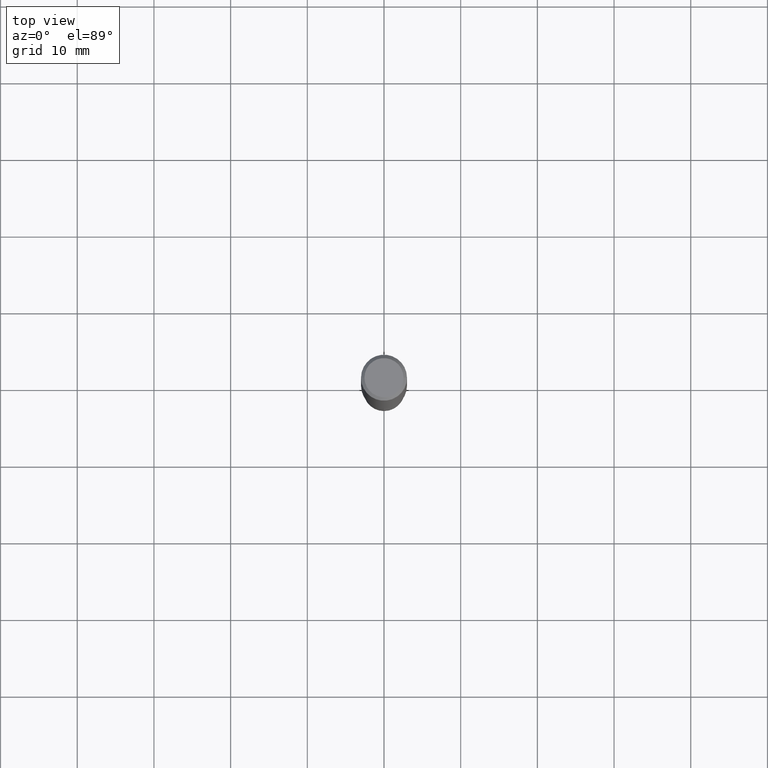
[diagram: clean part render]
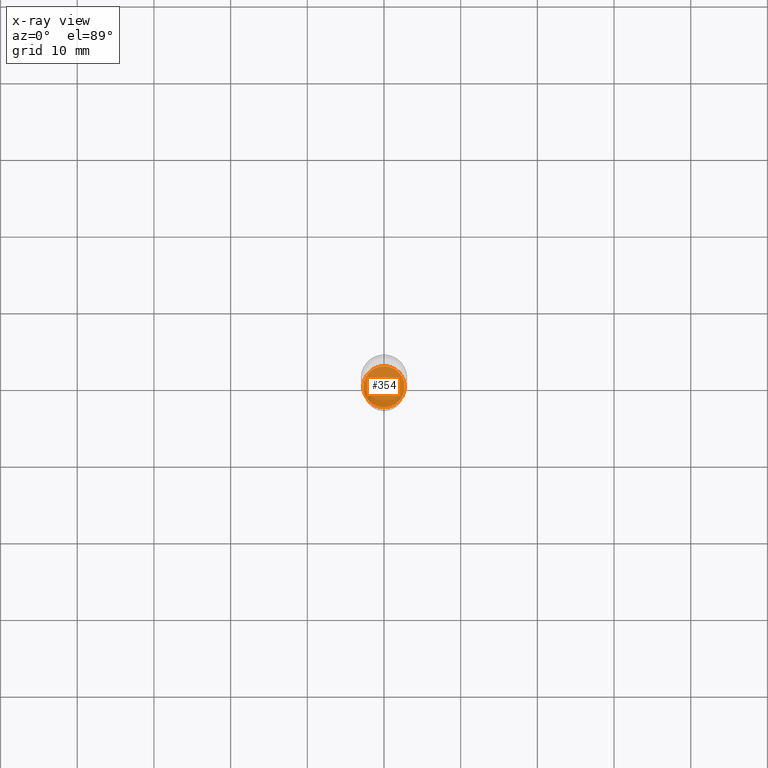
[diagram: x-ray — body ghosted, one internal face saturated and labeled with its STEP entity id]
A machine part, top view, then the same camera in x-ray: the body is ghosted and one INTERNAL B-rep face — a face not visible from any outside direction — is saturated and labeled: STEP entity #354.
In plain terms, the highlighted planar face has unit normal (-0, 0, 1).
Its self-contained STEP definition (entity closure, byte-faithful):
#8 = CARTESIAN_POINT ( 'NONE',  ( -0.1059999999999999970, -8.657907458709072486E-15, -2.696200000000000152 ) ) ;
#89 = DIRECTION ( 'NONE',  ( -2.445468806185136597E-29, 3.491481338843145583E-15, 1.000000000000000000 ) ) ;
#102 = ORIENTED_EDGE ( 'NONE', *, *, #352, .F. ) ;
#131 = AXIS2_PLACEMENT_3D ( 'NONE', #381, #89, #366 ) ;
#152 = DIRECTION ( 'NONE',  ( -2.438088387897960049E-29, 3.491481338843145188E-15, 1.000000000000000000 ) ) ;
#159 = PLANE ( 'NONE',  #399 ) ;
#185 = CARTESIAN_POINT ( 'NONE',  ( 0.1059999999999999970, -1.015392602962363252E-14, -2.696200000000000152 ) ) ;
#196 = CARTESIAN_POINT ( 'NONE',  ( 6.593472995236366435E-29, -9.413731985788889764E-15, -2.696200000000000152 ) ) ;
#227 = DIRECTION ( 'NONE',  ( 1.000000000000000000, -6.982962677686265922E-15, 4.876176775795935793E-29 ) ) ;
#228 = VERTEX_POINT ( 'NONE', #185 ) ;
#249 = AXIS2_PLACEMENT_3D ( 'NONE', #285, #360, #438 ) ;
#260 = VERTEX_POINT ( 'NONE', #8 ) ;
#285 = CARTESIAN_POINT ( 'NONE',  ( 6.593472995236366435E-29, -9.413731985788889764E-15, -2.696200000000000152 ) ) ;
#296 = FACE_OUTER_BOUND ( 'NONE', #358, .T. ) ;
#306 = ORIENTED_EDGE ( 'NONE', *, *, #395, .F. ) ;
#352 = EDGE_CURVE ( 'NONE', #260, #228, #384, .T. ) ;
#354 = ADVANCED_FACE ( 'NONE', ( #296 ), #159, .F. ) ;
#358 = EDGE_LOOP ( 'NONE', ( #306, #102 ) ) ;
#360 = DIRECTION ( 'NONE',  ( -2.445468806185136597E-29, 3.491481338843145583E-15, 1.000000000000000000 ) ) ;
#366 = DIRECTION ( 'NONE',  ( 1.000000000000000000, -6.982962677686260400E-15, 0.000000000000000000 ) ) ;
#381 = CARTESIAN_POINT ( 'NONE',  ( 6.593472995236366435E-29, -9.413731985788889764E-15, -2.696200000000000152 ) ) ;
#384 = CIRCLE ( 'NONE', #131, 0.1059999999999999970 ) ;
#395 = EDGE_CURVE ( 'NONE', #228, #260, #459, .T. ) ;
#399 = AXIS2_PLACEMENT_3D ( 'NONE', #196, #152, #227 ) ;
#438 = DIRECTION ( 'NONE',  ( 1.000000000000000000, -6.982962677686260400E-15, 0.000000000000000000 ) ) ;
#459 = CIRCLE ( 'NONE', #249, 0.1059999999999999970 ) ;